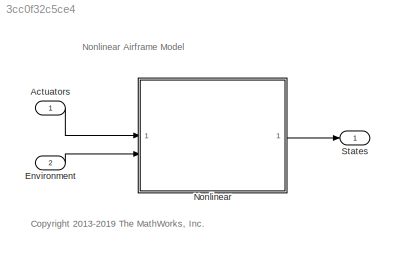
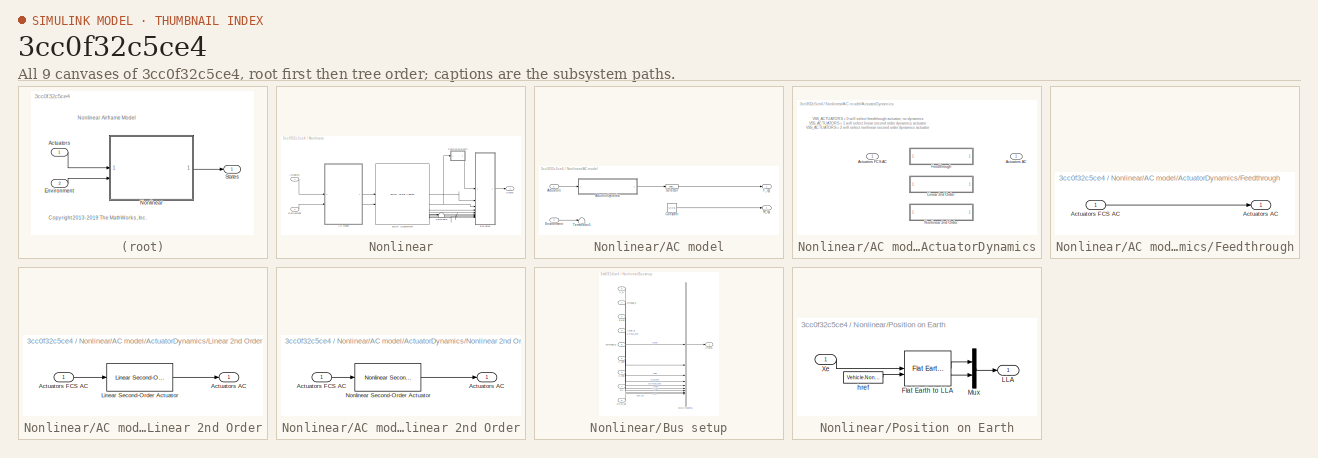
[diagram: thumbnail index - all 9 canvases of the model, root first then tree order]
MODEL slx_3cc0f32c5ce4
KIND model
CONFIG AbsTol = auto
CONFIG EnableMultiTasking = on
CONFIG FixedStep = Ts
CONFIG MaxStep = auto
CONFIG MinStep = auto
CONFIG RelTol = 1e-3
CONFIG SampleTimeConstraint = Unconstrained
CONFIG SolverName = ode3
CONFIG StartTime = 0
CONFIG StopTime = 10.0
BLOCK [Inport] Actuators
BLOCK [Inport] Environment
  BusOutputAsStruct = on
  OutDataTypeStr = Bus: EnvironmentBus
  Port = 2
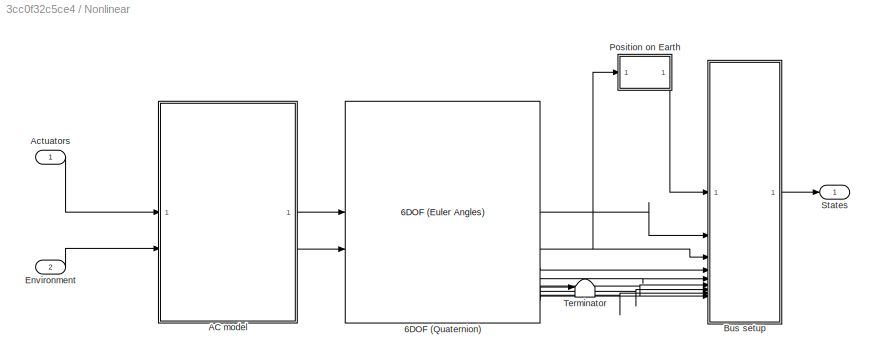
BLOCK [SubSystem] Nonlinear
  TreatAsAtomicUnit = on
BLOCK [Reference] Nonlinear/6DOF (Quaternion)  REF=shared6dof/6DOF (Euler Angles)
  SourceBlock = shared6dof/6DOF (Euler Angles)
  SourceType = 6DOF EoM (Body Axis)
BLOCK [SubSystem] Nonlinear/AC model
BLOCK [SubSystem] Nonlinear/AC model/ActuatorDynamics
  Variant = on
BLOCK [Outport] Nonlinear/AC model/ActuatorDynamics/Actuators AC
  VectorParamsAs1DForOutWhenUnconnected = off
BLOCK [Inport] Nonlinear/AC model/ActuatorDynamics/Actuators FCS AC
BLOCK [SubSystem] Nonlinear/AC model/ActuatorDynamics/Feedthrough
  AncestorBlock = actuatorsLibrary/Feedthrough
  VariantControl = VSS_ACTUATORS_FEEDTHROUGH
BLOCK [Outport] Nonlinear/AC model/ActuatorDynamics/Feedthrough/Actuators AC
  VectorParamsAs1DForOutWhenUnconnected = off
BLOCK [Inport] Nonlinear/AC model/ActuatorDynamics/Feedthrough/Actuators FCS AC
BLOCK [SubSystem] Nonlinear/AC model/ActuatorDynamics/Linear 2nd Order
  AncestorBlock = actuatorsLibrary/Linear 2nd Order
  VariantControl = VSS_ACTUATORS_LINEAR
BLOCK [Outport] Nonlinear/AC model/ActuatorDynamics/Linear 2nd Order/Actuators AC
  VectorParamsAs1DForOutWhenUnconnected = off
BLOCK [Inport] Nonlinear/AC model/ActuatorDynamics/Linear 2nd Order/Actuators FCS AC
BLOCK [Reference] Nonlinear/AC model/ActuatorDynamics/Linear 2nd Order/Linear Second-Order Actuator  REF=aerolibactuator/Linear Second-Order Actuator
  SourceBlock = aerolibactuator/Linear Second-Order Actuator
  SourceType = LinearSecondOrderActuator
BLOCK [SubSystem] Nonlinear/AC model/ActuatorDynamics/Nonlinear 2nd Order
  AncestorBlock = actuatorsLibrary/Nonlinear 2nd Order
  VariantControl = VSS_ACTUATORS_NONLINEAR
BLOCK [Outport] Nonlinear/AC model/ActuatorDynamics/Nonlinear 2nd Order/Actuators AC
  VectorParamsAs1DForOutWhenUnconnected = off
BLOCK [Inport] Nonlinear/AC model/ActuatorDynamics/Nonlinear 2nd Order/Actuators FCS AC
BLOCK [Reference] Nonlinear/AC model/ActuatorDynamics/Nonlinear 2nd Order/Nonlinear Second-Order Actuator  REF=aerolibactuator/Nonlinear Second-Order Actuator
  SourceBlock = aerolibactuator/Nonlinear Second-Order Actuator
  SourceType = NonlinearSecondOrderActuator
BLOCK [Inport] Nonlinear/AC model/Actuators
BLOCK [Constant] Nonlinear/AC model/Constant
  Value = [0 0 0]
BLOCK [Inport] Nonlinear/AC model/Environment
  Port = 2
BLOCK [Outport] Nonlinear/AC model/F_cg
  VectorParamsAs1DForOutWhenUnconnected = off
BLOCK [Outport] Nonlinear/AC model/M_cg
  Port = 2
  VectorParamsAs1DForOutWhenUnconnected = off
BLOCK [Selector] Nonlinear/AC model/Selector
  IndexOptions = Index vector (dialog)
  Indices = [1 2 3]
  InputPortWidth = 4
  OutputSizes = 1
BLOCK [Terminator] Nonlinear/AC model/Terminator1
BLOCK [Inport] Nonlinear/Actuators
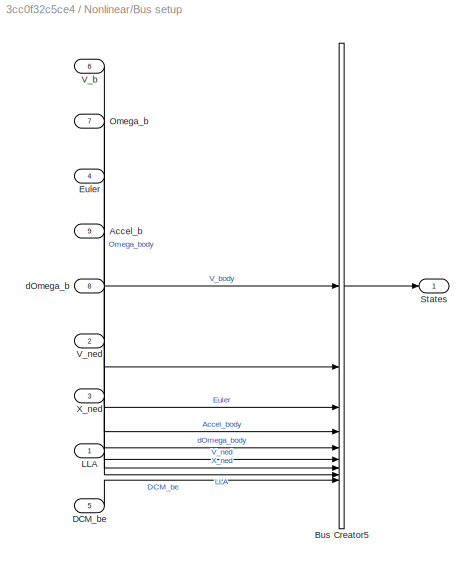
BLOCK [SubSystem] Nonlinear/Bus setup
BLOCK [Inport] Nonlinear/Bus setup/Accel_b
  Port = 9
  PortDimensions = 3
BLOCK [BusCreator] Nonlinear/Bus setup/Bus Creator5
  DisplayOption = bar
  InheritFromInputs = on
  Inputs = 9
  NonVirtualBus = on
  OutDataTypeStr = Bus: StatesBus
BLOCK [Inport] Nonlinear/Bus setup/DCM_be
  Port = 5
  PortDimensions = [3 3]
BLOCK [Inport] Nonlinear/Bus setup/Euler
  Port = 4
  PortDimensions = 3
BLOCK [Inport] Nonlinear/Bus setup/LLA
  PortDimensions = 3
BLOCK [Inport] Nonlinear/Bus setup/Omega_b
  Port = 7
  PortDimensions = 3
BLOCK [Outport] Nonlinear/Bus setup/States
  VectorParamsAs1DForOutWhenUnconnected = off
BLOCK [Inport] Nonlinear/Bus setup/V_b
  Port = 6
  PortDimensions = 3
BLOCK [Inport] Nonlinear/Bus setup/V_ned
  Port = 2
  PortDimensions = 3
BLOCK [Inport] Nonlinear/Bus setup/X_ned
  Port = 3
  PortDimensions = 3
BLOCK [Inport] Nonlinear/Bus setup/dOmega_b
  Port = 8
  PortDimensions = 3
BLOCK [Inport] Nonlinear/Environment
  Port = 2
BLOCK [SubSystem] Nonlinear/Position on Earth
  NameLocation = top
  Priority = 1
  TreatAsAtomicUnit = on
BLOCK [Reference] Nonlinear/Position on Earth/Flat Earth to LLA  REF=aerolibtransform2/Flat Earth to LLA
  SourceBlock = aerolibtransform2/Flat Earth to LLA
  SourceType = Flat Earth to LLA
BLOCK [Outport] Nonlinear/Position on Earth/LLA
  VectorParamsAs1DForOutWhenUnconnected = off
BLOCK [Mux] Nonlinear/Position on Earth/Mux
  DisplayOption = bar
  Inputs = 2
BLOCK [Inport] Nonlinear/Position on Earth/Xe
BLOCK [Constant] Nonlinear/Position on Earth/href
  Value = Vehicle.Nonlinear.Nonlinear.PositionOnEarth.href
BLOCK [Outport] Nonlinear/States
  VectorParamsAs1DForOutWhenUnconnected = off
BLOCK [Terminator] Nonlinear/Terminator
BLOCK [Outport] States
  BusOutputAsStruct = on
  OutDataTypeStr = Bus: StatesBus
  VectorParamsAs1DForOutWhenUnconnected = off
ANNOTATION (root): <copyright redacted>
ANNOTATION (root): Nonlinear Airframe Model
ANNOTATION Nonlinear/AC model/ActuatorDynamics: VSS_ACTUATORS = 0 will select feedtrhough actuator, no dynamics VSS_ACTUATORS = 1 will select linear second order dynamics actuator VSS_ACTUATORS = 2 will select nonlinear second order dynamics actuator
LINE Actuators:1 -> Nonlinear:1
LINE Environment:1 -> Nonlinear:2
LINE Nonlinear/6DOF (Quaternion):1 -> Nonlinear/Bus setup:2
NET Nonlinear/6DOF (Quaternion):2 -> Nonlinear/Bus setup:3, Nonlinear/Position on Earth:1
LINE Nonlinear/6DOF (Quaternion):3 -> Nonlinear/Bus setup:4
LINE Nonlinear/6DOF (Quaternion):4 -> Nonlinear/Bus setup:5
LINE Nonlinear/6DOF (Quaternion):5 -> Nonlinear/Bus setup:6
LINE Nonlinear/6DOF (Quaternion):6 -> Nonlinear/Bus setup:7
LINE Nonlinear/6DOF (Quaternion):7 -> Nonlinear/Bus setup:8
LINE Nonlinear/6DOF (Quaternion):8 -> Nonlinear/Terminator:1
LINE Nonlinear/6DOF (Quaternion):9 -> Nonlinear/Bus setup:9
LINE Nonlinear/AC model/ActuatorDynamics:1 -> Nonlinear/AC model/Selector:1
LINE Nonlinear/AC model/Actuators:1 -> Nonlinear/AC model/ActuatorDynamics:1
LINE Nonlinear/AC model/Constant:1 -> Nonlinear/AC model/M_cg:1
LINE Nonlinear/AC model/Environment:1 -> Nonlinear/AC model/Terminator1:1
LINE Nonlinear/AC model/Selector:1 -> Nonlinear/AC model/F_cg:1
LINE Nonlinear/AC model:1 -> Nonlinear/6DOF (Quaternion):1
LINE Nonlinear/AC model:2 -> Nonlinear/6DOF (Quaternion):2
LINE Nonlinear/Actuators:1 -> Nonlinear/AC model:1
LINE Nonlinear/Bus setup/Accel_b:1 -> Nonlinear/Bus setup/Bus Creator5:4
LINE Nonlinear/Bus setup/Bus Creator5:1 -> Nonlinear/Bus setup/States:1
LINE Nonlinear/Bus setup/DCM_be:1 -> Nonlinear/Bus setup/Bus Creator5:9
LINE Nonlinear/Bus setup/Euler:1 -> Nonlinear/Bus setup/Bus Creator5:3
LINE Nonlinear/Bus setup/LLA:1 -> Nonlinear/Bus setup/Bus Creator5:8
LINE Nonlinear/Bus setup/Omega_b:1 -> Nonlinear/Bus setup/Bus Creator5:2
LINE Nonlinear/Bus setup/V_b:1 -> Nonlinear/Bus setup/Bus Creator5:1
LINE Nonlinear/Bus setup/V_ned:1 -> Nonlinear/Bus setup/Bus Creator5:6
LINE Nonlinear/Bus setup/X_ned:1 -> Nonlinear/Bus setup/Bus Creator5:7
LINE Nonlinear/Bus setup/dOmega_b:1 -> Nonlinear/Bus setup/Bus Creator5:5
LINE Nonlinear/Bus setup:1 -> Nonlinear/States:1
LINE Nonlinear/Environment:1 -> Nonlinear/AC model:2
LINE Nonlinear/Position on Earth/Flat Earth to LLA:1 -> Nonlinear/Position on Earth/Mux:1
LINE Nonlinear/Position on Earth/Flat Earth to LLA:2 -> Nonlinear/Position on Earth/Mux:2
LINE Nonlinear/Position on Earth/Mux:1 -> Nonlinear/Position on Earth/LLA:1
LINE Nonlinear/Position on Earth/Xe:1 -> Nonlinear/Position on Earth/Flat Earth to LLA:1
LINE Nonlinear/Position on Earth/href:1 -> Nonlinear/Position on Earth/Flat Earth to LLA:2
LINE Nonlinear/Position on Earth:1 -> Nonlinear/Bus setup:1
LINE Nonlinear:1 -> States:1
note: NET lines group one-source signal fan-out (src -> all destinations, sorted); 1:1 wires keep LINE
